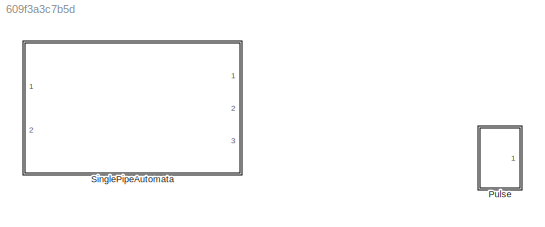
MODEL slx_609f3a3c7b5d
KIND library
CONFIG AbsTol = auto
CONFIG EnableMultiTasking = off
CONFIG FixedStep = auto
CONFIG MaxStep = auto
CONFIG MinStep = auto
CONFIG RelTol = 1e-3
CONFIG SampleTimeConstraint = Unconstrained
CONFIG Solver = VariableStepAuto
CONFIG SolverName = VariableStepAuto
CONFIG StartTime = 0.0
CONFIG StopTime = 10.0
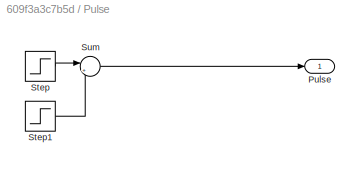
BLOCK [SubSystem] Pulse
  Ports = [0, 1]
  RequestExecContextInheritance = off
BLOCK [Outport] Pulse/Pulse
  IconDisplay = Port number
BLOCK [Step] Pulse/Step
  Time = time
BLOCK [Step] Pulse/Step1
  After = -1
  Time = time+duration
BLOCK [Sum] Pulse/Sum
  IconShape = round
  InputSameDT = off
  Inputs = |++
  OutDataTypeStr = Inherit: Inherit via internal rule
  Ports = [2, 1]
  SaturateOnIntegerOverflow = off
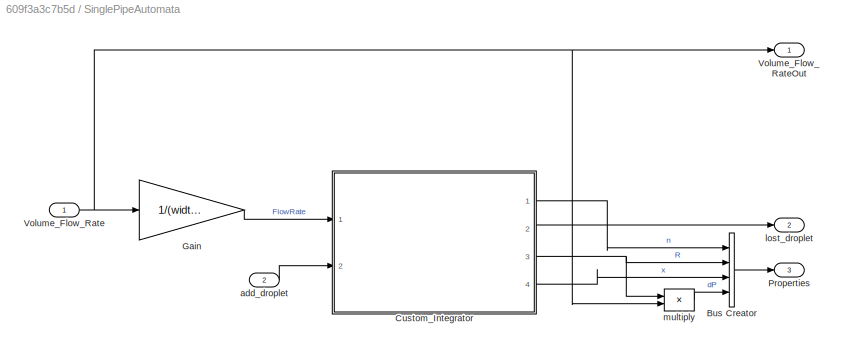
BLOCK [SubSystem] SinglePipeAutomata
  Ports = [2, 3]
  RequestExecContextInheritance = off
BLOCK [BusCreator] SinglePipeAutomata/Bus Creator
  DisplayOption = bar
  InheritFromInputs = on
  Inputs = 4
  Ports = [4, 1]
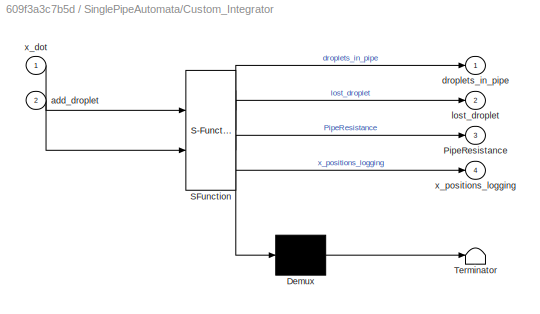
BLOCK [SubSystem] SinglePipeAutomata/Custom_Integrator
  ErrorFcn = Stateflow.Translate.translate
  PermitHierarchicalResolution = ExplicitOnly
  Ports = [2, 4]
  RequestExecContextInheritance = off
  SFBlockType = MATLAB Function
  TreatAsAtomicUnit = on
BLOCK [Demux] SinglePipeAutomata/Custom_Integrator/ Demux 
  Outputs = 1
  Ports = [1, 1]
BLOCK [S-Function] SinglePipeAutomata/Custom_Integrator/ SFunction 
  EnableBusSupport = on
  FunctionName = sf_sfun
  Parameters = Rc,Rd,dt,upper_Limit
  PortCounts = [2 5]
  Ports = [2, 5]
  SFcnIsStateOwnerBlock = off
  SFunctionDeploymentMode = off
  Tag = Stateflow S-Function SinglePipe_lib 1
BLOCK [Terminator] SinglePipeAutomata/Custom_Integrator/ Terminator 
BLOCK [Outport] SinglePipeAutomata/Custom_Integrator/PipeResistance
  IconDisplay = Port number
  Port = 3
BLOCK [Inport] SinglePipeAutomata/Custom_Integrator/add_droplet
  IconDisplay = Port number
  Port = 2
BLOCK [Outport] SinglePipeAutomata/Custom_Integrator/droplets_in_pipe
  IconDisplay = Port number
BLOCK [Outport] SinglePipeAutomata/Custom_Integrator/lost_droplet
  IconDisplay = Port number
  Port = 2
BLOCK [Inport] SinglePipeAutomata/Custom_Integrator/x_dot
  IconDisplay = Port number
BLOCK [Outport] SinglePipeAutomata/Custom_Integrator/x_positions_logging
  IconDisplay = Port number
  Port = 4
BLOCK [Gain] SinglePipeAutomata/Gain
  Gain = 1/(width*height)
  OutDataTypeStr = Inherit: Inherit via internal rule
  ParamDataTypeStr = Inherit: Inherit via internal rule
  SaturateOnIntegerOverflow = off
BLOCK [Outport] SinglePipeAutomata/Properties
  IconDisplay = Port number
  Port = 3
BLOCK [Inport] SinglePipeAutomata/Volume_Flow_Rate
  IconDisplay = Port number
BLOCK [Outport] SinglePipeAutomata/Volume_Flow_RateOut
  IconDisplay = Port number
BLOCK [Inport] SinglePipeAutomata/add_droplet
  IconDisplay = Port number
  Port = 2
BLOCK [Outport] SinglePipeAutomata/lost_droplet
  IconDisplay = Port number
  Port = 2
BLOCK [Product] SinglePipeAutomata/multiply
  InputSameDT = off
  Inputs = **
  OutDataTypeStr = Inherit: Inherit via internal rule
  Ports = [2, 1]
  RndMeth = Floor
  SaturateOnIntegerOverflow = off
LINE Pulse/Step1:1 -> Pulse/Sum:2
LINE Pulse/Step:1 -> Pulse/Sum:1
LINE Pulse/Sum:1 -> Pulse/Pulse:1
LINE SinglePipeAutomata/Bus Creator:1 -> SinglePipeAutomata/Properties:1
LINE SinglePipeAutomata/Custom_Integrator:1 -> SinglePipeAutomata/Bus Creator:1
LINE SinglePipeAutomata/Custom_Integrator:2 -> SinglePipeAutomata/lost_droplet:1
NET SinglePipeAutomata/Custom_Integrator:3 -> SinglePipeAutomata/Bus Creator:2, SinglePipeAutomata/multiply:1
LINE SinglePipeAutomata/Custom_Integrator:4 -> SinglePipeAutomata/Bus Creator:3
LINE SinglePipeAutomata/Gain:1 -> SinglePipeAutomata/Custom_Integrator:1
NET SinglePipeAutomata/Volume_Flow_Rate:1 -> SinglePipeAutomata/Gain:1, SinglePipeAutomata/Volume_Flow_RateOut:1, SinglePipeAutomata/multiply:2
LINE SinglePipeAutomata/add_droplet:1 -> SinglePipeAutomata/Custom_Integrator:2
LINE SinglePipeAutomata/multiply:1 -> SinglePipeAutomata/Bus Creator:4
note: NET lines group one-source signal fan-out (src -> all destinations, sorted); 1:1 wires keep LINE
CHART SinglePipeAutomata/Custom_Integrator states=1 transitions=1
  STATE_LABEL 'eML_blk_kernel()'
  STATE_LABEL 'SCRIPT:\nfunction [droplets_in_pipe, lost_droplet, PipeResistance, x_positions_logging] = fcn(x_dot, dt, add_droplet, upper_Limit, Rc, Rd)\n\n%% declare persistent memory/internal state\npersistent x_state\npersistent number_droplet\n%% initalize internal state/memory \nif (isempty(x_state))\n    x_state = [];\nend\nif (isempty(number_droplet))\n    number_droplet = 0;\nend\n\n%% first check if we added a new d...<+914ch>'
